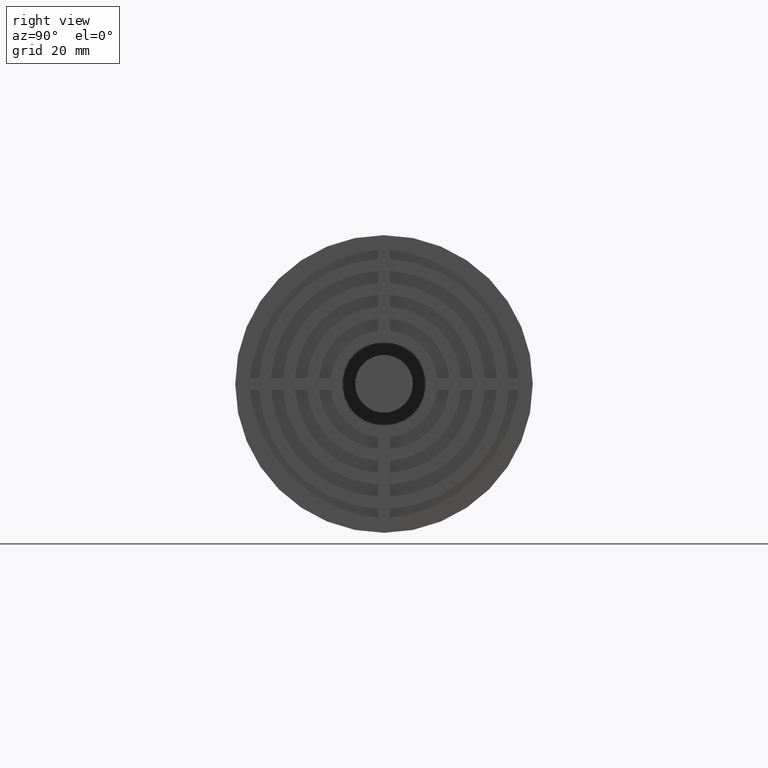
[diagram: clean part render]
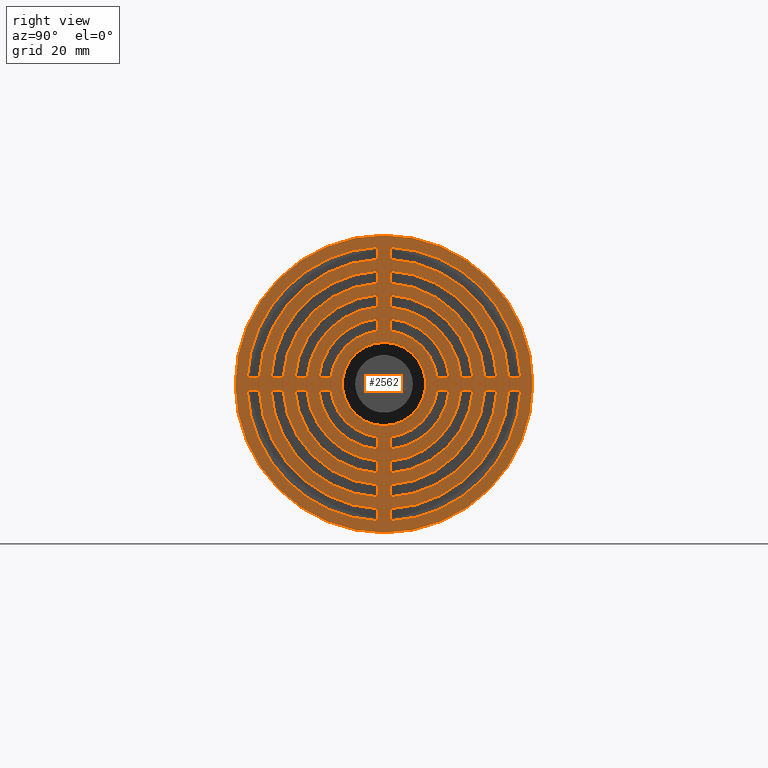
[diagram: same view with one face highlighted and labeled with its STEP entity id]
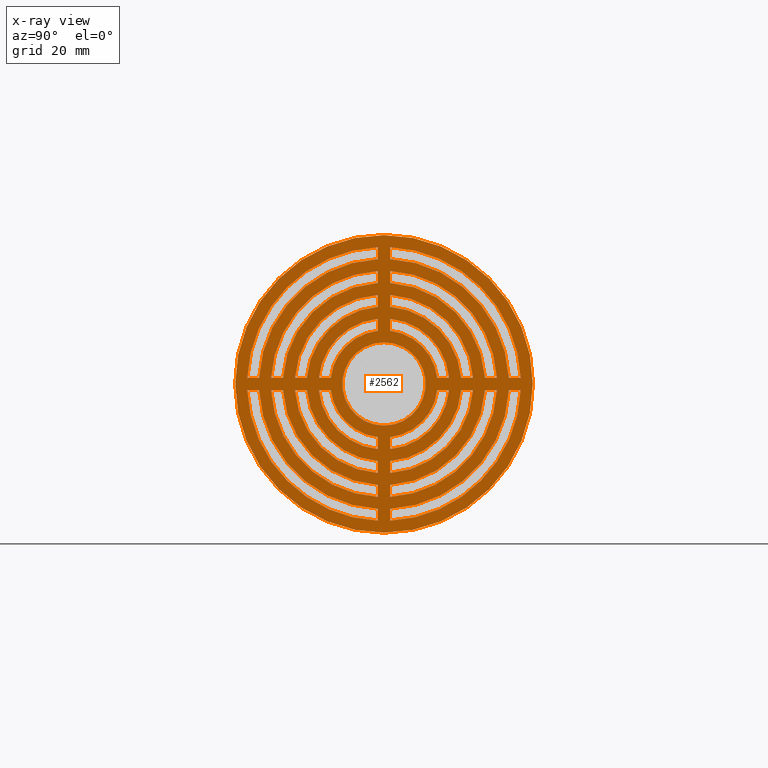
[diagram: x-ray of the same camera — body ghosted, the highlighted face saturated]
A machine part, right view. The second image highlights one B-rep face of the part: STEP entity #2562.
The next image is the same camera in x-ray: the body ghosted, the highlighted face saturated — about 0% of this face is hidden behind the body in this view.
In plain terms, the highlighted planar face has unit normal (1, 0, 0).
Its self-contained STEP definition (entity closure, byte-faithful):
#15=LINE('',#3656,#239);
#20=LINE('',#3670,#244);
#23=LINE('',#3681,#247);
#28=LINE('',#3695,#252);
#31=LINE('',#3706,#255);
#36=LINE('',#3720,#260);
#41=LINE('',#3739,#265);
#45=LINE('',#3750,#269);
#47=LINE('',#3756,#271);
#52=LINE('',#3770,#276);
#57=LINE('',#3789,#281);
#61=LINE('',#3800,#285);
#63=LINE('',#3806,#287);
#68=LINE('',#3820,#292);
#71=LINE('',#3831,#295);
#76=LINE('',#3845,#300);
#81=LINE('',#3864,#305);
#85=LINE('',#3875,#309);
#89=LINE('',#3889,#313);
#93=LINE('',#3900,#317);
#95=LINE('',#3906,#319);
#100=LINE('',#3920,#324);
#105=LINE('',#3939,#329);
#109=LINE('',#3950,#333);
#111=LINE('',#3956,#335);
#116=LINE('',#3970,#340);
#121=LINE('',#3989,#345);
#125=LINE('',#4000,#349);
#127=LINE('',#4006,#351);
#132=LINE('',#4020,#356);
#135=LINE('',#4031,#359);
#140=LINE('',#4045,#364);
#239=VECTOR('',#2877,2.00207362274909);
#244=VECTOR('',#2890,2.00207362274909);
#247=VECTOR('',#2903,2.00207362274909);
#252=VECTOR('',#2916,2.00207362274909);
#255=VECTOR('',#2929,2.00310321253313);
#260=VECTOR('',#2942,2.00310321253313);
#265=VECTOR('',#2963,2.00310321253313);
#269=VECTOR('',#2975,2.00310321253313);
#271=VECTOR('',#2981,2.00514815028005);
#276=VECTOR('',#2994,2.00514815028005);
#281=VECTOR('',#3015,2.00514815028005);
#285=VECTOR('',#3027,2.00514815028005);
#287=VECTOR('',#3033,2.01017924010416);
#292=VECTOR('',#3046,2.01017924010416);
#295=VECTOR('',#3059,2.01017924010416);
#300=VECTOR('',#3072,2.01017924010416);
#305=VECTOR('',#3093,2.01017924010416);
#309=VECTOR('',#3105,2.01017924010416);
#313=VECTOR('',#3119,2.01017924010416);
#317=VECTOR('',#3131,2.01017924010416);
#319=VECTOR('',#3137,2.00514815028005);
#324=VECTOR('',#3150,2.00514815028005);
#329=VECTOR('',#3171,2.00514815028005);
#333=VECTOR('',#3183,2.00514815028004);
#335=VECTOR('',#3189,2.00310321253313);
#340=VECTOR('',#3202,2.00310321253313);
#345=VECTOR('',#3223,2.00310321253313);
#349=VECTOR('',#3235,2.00310321253313);
#351=VECTOR('',#3241,2.00207362274909);
#356=VECTOR('',#3254,2.00207362274909);
#359=VECTOR('',#3267,2.00207362274909);
#364=VECTOR('',#3280,2.00207362274909);
#613=PLANE('',#2841);
#636=FACE_BOUND('',#979,.T.);
#637=FACE_BOUND('',#980,.T.);
#638=FACE_BOUND('',#981,.T.);
#639=FACE_BOUND('',#982,.T.);
#640=FACE_BOUND('',#983,.T.);
#641=FACE_BOUND('',#984,.T.);
#642=FACE_BOUND('',#985,.T.);
#643=FACE_BOUND('',#986,.T.);
#644=FACE_BOUND('',#987,.T.);
#645=FACE_BOUND('',#988,.T.);
#646=FACE_BOUND('',#989,.T.);
#647=FACE_BOUND('',#990,.T.);
#648=FACE_BOUND('',#991,.T.);
#649=FACE_BOUND('',#992,.T.);
#650=FACE_BOUND('',#993,.T.);
#651=FACE_BOUND('',#994,.T.);
#652=FACE_BOUND('',#995,.T.);
#804=FACE_OUTER_BOUND('',#978,.T.);
#978=EDGE_LOOP('',(#2339));
#979=EDGE_LOOP('',(#2340));
#980=EDGE_LOOP('',(#2341,#2342,#2343,#2344));
#981=EDGE_LOOP('',(#2345,#2346,#2347,#2348));
#982=EDGE_LOOP('',(#2349,#2350,#2351,#2352));
#983=EDGE_LOOP('',(#2353,#2354,#2355,#2356));
#984=EDGE_LOOP('',(#2357,#2358,#2359,#2360));
#985=EDGE_LOOP('',(#2361,#2362,#2363,#2364));
#986=EDGE_LOOP('',(#2365,#2366,#2367,#2368));
#987=EDGE_LOOP('',(#2369,#2370,#2371,#2372));
#988=EDGE_LOOP('',(#2373,#2374,#2375,#2376));
#989=EDGE_LOOP('',(#2377,#2378,#2379,#2380));
#990=EDGE_LOOP('',(#2381,#2382,#2383,#2384));
#991=EDGE_LOOP('',(#2385,#2386,#2387,#2388));
#992=EDGE_LOOP('',(#2389,#2390,#2391,#2392));
#993=EDGE_LOOP('',(#2393,#2394,#2395,#2396));
#994=EDGE_LOOP('',(#2397,#2398,#2399,#2400));
#995=EDGE_LOOP('',(#2401,#2402,#2403,#2404));
#1007=CIRCLE('',#2576,25.);
#1009=CIRCLE('',#2579,7.);
#1011=CIRCLE('',#2584,21.);
#1013=CIRCLE('',#2588,23.);
#1015=CIRCLE('',#2593,21.);
#1017=CIRCLE('',#2597,23.);
#1019=CIRCLE('',#2602,17.);
#1021=CIRCLE('',#2606,19.);
#1023=CIRCLE('',#2610,17.);
#1025=CIRCLE('',#2614,19.);
#1027=CIRCLE('',#2620,13.);
#1029=CIRCLE('',#2624,15.);
#1031=CIRCLE('',#2628,13.);
#1033=CIRCLE('',#2632,15.);
#1035=CIRCLE('',#2638,11.);
#1037=CIRCLE('',#2642,9.);
#1039=CIRCLE('',#2647,11.);
#1041=CIRCLE('',#2651,9.);
#1043=CIRCLE('',#2655,11.);
#1045=CIRCLE('',#2659,9.);
#1047=CIRCLE('',#2664,11.);
#1049=CIRCLE('',#2668,9.);
#1051=CIRCLE('',#2674,13.);
#1053=CIRCLE('',#2678,15.);
#1055=CIRCLE('',#2682,15.);
#1057=CIRCLE('',#2686,13.);
#1059=CIRCLE('',#2692,17.);
#1061=CIRCLE('',#2696,19.);
#1063=CIRCLE('',#2700,19.);
#1065=CIRCLE('',#2704,17.);
#1067=CIRCLE('',#2710,21.);
#1069=CIRCLE('',#2714,23.);
#1071=CIRCLE('',#2719,21.);
#1073=CIRCLE('',#2723,23.);
#1132=VERTEX_POINT('',#3643);
#1134=VERTEX_POINT('',#3648);
#1136=VERTEX_POINT('',#3654);
#1137=VERTEX_POINT('',#3655);
#1140=VERTEX_POINT('',#3663);
#1142=VERTEX_POINT('',#3669);
#1144=VERTEX_POINT('',#3679);
#1145=VERTEX_POINT('',#3680);
#1148=VERTEX_POINT('',#3688);
#1150=VERTEX_POINT('',#3694);
#1152=VERTEX_POINT('',#3704);
#1153=VERTEX_POINT('',#3705);
#1156=VERTEX_POINT('',#3713);
#1158=VERTEX_POINT('',#3719);
#1160=VERTEX_POINT('',#3729);
#1161=VERTEX_POINT('',#3730);
#1164=VERTEX_POINT('',#3738);
#1166=VERTEX_POINT('',#3744);
#1168=VERTEX_POINT('',#3754);
#1169=VERTEX_POINT('',#3755);
#1172=VERTEX_POINT('',#3763);
#1174=VERTEX_POINT('',#3769);
#1176=VERTEX_POINT('',#3779);
#1177=VERTEX_POINT('',#3780);
#1180=VERTEX_POINT('',#3788);
#1182=VERTEX_POINT('',#3794);
#1184=VERTEX_POINT('',#3804);
#1185=VERTEX_POINT('',#3805);
#1188=VERTEX_POINT('',#3813);
#1190=VERTEX_POINT('',#3819);
#1192=VERTEX_POINT('',#3829);
#1193=VERTEX_POINT('',#3830);
#1196=VERTEX_POINT('',#3838);
#1198=VERTEX_POINT('',#3844);
#1200=VERTEX_POINT('',#3854);
#1201=VERTEX_POINT('',#3855);
#1204=VERTEX_POINT('',#3863);
#1206=VERTEX_POINT('',#3869);
#1208=VERTEX_POINT('',#3879);
#1209=VERTEX_POINT('',#3880);
#1212=VERTEX_POINT('',#3888);
#1214=VERTEX_POINT('',#3894);
#1216=VERTEX_POINT('',#3904);
#1217=VERTEX_POINT('',#3905);
#1220=VERTEX_POINT('',#3913);
#1222=VERTEX_POINT('',#3919);
#1224=VERTEX_POINT('',#3929);
#1225=VERTEX_POINT('',#3930);
#1228=VERTEX_POINT('',#3938);
#1230=VERTEX_POINT('',#3944);
#1232=VERTEX_POINT('',#3954);
#1233=VERTEX_POINT('',#3955);
#1236=VERTEX_POINT('',#3963);
#1238=VERTEX_POINT('',#3969);
#1240=VERTEX_POINT('',#3979);
#1241=VERTEX_POINT('',#3980);
#1244=VERTEX_POINT('',#3988);
#1246=VERTEX_POINT('',#3994);
#1248=VERTEX_POINT('',#4004);
#1249=VERTEX_POINT('',#4005);
#1252=VERTEX_POINT('',#4013);
#1254=VERTEX_POINT('',#4019);
#1256=VERTEX_POINT('',#4029);
#1257=VERTEX_POINT('',#4030);
#1260=VERTEX_POINT('',#4038);
#1262=VERTEX_POINT('',#4044);
#1369=EDGE_CURVE('',#1132,#1132,#1007,.T.);
#1371=EDGE_CURVE('',#1134,#1134,#1009,.T.);
#1373=EDGE_CURVE('',#1136,#1137,#15,.T.);
#1377=EDGE_CURVE('',#1140,#1136,#1011,.T.);
#1380=EDGE_CURVE('',#1142,#1140,#20,.T.);
#1383=EDGE_CURVE('',#1137,#1142,#1013,.T.);
#1385=EDGE_CURVE('',#1144,#1145,#23,.T.);
#1389=EDGE_CURVE('',#1148,#1144,#1015,.T.);
#1392=EDGE_CURVE('',#1150,#1148,#28,.T.);
#1395=EDGE_CURVE('',#1145,#1150,#1017,.T.);
#1397=EDGE_CURVE('',#1152,#1153,#31,.T.);
#1401=EDGE_CURVE('',#1156,#1152,#1019,.T.);
#1404=EDGE_CURVE('',#1158,#1156,#36,.T.);
#1407=EDGE_CURVE('',#1153,#1158,#1021,.T.);
#1409=EDGE_CURVE('',#1160,#1161,#1023,.T.);
#1413=EDGE_CURVE('',#1164,#1160,#41,.T.);
#1416=EDGE_CURVE('',#1166,#1164,#1025,.T.);
#1419=EDGE_CURVE('',#1161,#1166,#45,.T.);
#1421=EDGE_CURVE('',#1168,#1169,#47,.T.);
#1425=EDGE_CURVE('',#1172,#1168,#1027,.T.);
#1428=EDGE_CURVE('',#1174,#1172,#52,.T.);
#1431=EDGE_CURVE('',#1169,#1174,#1029,.T.);
#1433=EDGE_CURVE('',#1176,#1177,#1031,.T.);
#1437=EDGE_CURVE('',#1180,#1176,#57,.T.);
#1440=EDGE_CURVE('',#1182,#1180,#1033,.T.);
#1443=EDGE_CURVE('',#1177,#1182,#61,.T.);
#1445=EDGE_CURVE('',#1184,#1185,#63,.T.);
#1449=EDGE_CURVE('',#1188,#1184,#1035,.T.);
#1452=EDGE_CURVE('',#1190,#1188,#68,.T.);
#1455=EDGE_CURVE('',#1185,#1190,#1037,.T.);
#1457=EDGE_CURVE('',#1192,#1193,#71,.T.);
#1461=EDGE_CURVE('',#1196,#1192,#1039,.T.);
#1464=EDGE_CURVE('',#1198,#1196,#76,.T.);
#1467=EDGE_CURVE('',#1193,#1198,#1041,.T.);
#1469=EDGE_CURVE('',#1200,#1201,#1043,.T.);
#1473=EDGE_CURVE('',#1204,#1200,#81,.T.);
#1476=EDGE_CURVE('',#1206,#1204,#1045,.T.);
#1479=EDGE_CURVE('',#1201,#1206,#85,.T.);
#1481=EDGE_CURVE('',#1208,#1209,#1047,.T.);
#1485=EDGE_CURVE('',#1212,#1208,#89,.T.);
#1488=EDGE_CURVE('',#1214,#1212,#1049,.T.);
#1491=EDGE_CURVE('',#1209,#1214,#93,.T.);
#1493=EDGE_CURVE('',#1216,#1217,#95,.T.);
#1497=EDGE_CURVE('',#1220,#1216,#1051,.T.);
#1500=EDGE_CURVE('',#1222,#1220,#100,.T.);
#1503=EDGE_CURVE('',#1217,#1222,#1053,.T.);
#1505=EDGE_CURVE('',#1224,#1225,#1055,.T.);
#1509=EDGE_CURVE('',#1228,#1224,#105,.T.);
#1512=EDGE_CURVE('',#1230,#1228,#1057,.T.);
#1515=EDGE_CURVE('',#1225,#1230,#109,.T.);
#1517=EDGE_CURVE('',#1232,#1233,#111,.T.);
#1521=EDGE_CURVE('',#1236,#1232,#1059,.T.);
#1524=EDGE_CURVE('',#1238,#1236,#116,.T.);
#1527=EDGE_CURVE('',#1233,#1238,#1061,.T.);
#1529=EDGE_CURVE('',#1240,#1241,#1063,.T.);
#1533=EDGE_CURVE('',#1244,#1240,#121,.T.);
#1536=EDGE_CURVE('',#1246,#1244,#1065,.T.);
#1539=EDGE_CURVE('',#1241,#1246,#125,.T.);
#1541=EDGE_CURVE('',#1248,#1249,#127,.T.);
#1545=EDGE_CURVE('',#1252,#1248,#1067,.T.);
#1548=EDGE_CURVE('',#1254,#1252,#132,.T.);
#1551=EDGE_CURVE('',#1249,#1254,#1069,.T.);
#1553=EDGE_CURVE('',#1256,#1257,#135,.T.);
#1557=EDGE_CURVE('',#1260,#1256,#1071,.T.);
#1560=EDGE_CURVE('',#1262,#1260,#140,.T.);
#1563=EDGE_CURVE('',#1257,#1262,#1073,.T.);
#2339=ORIENTED_EDGE('',*,*,#1369,.T.);
#2340=ORIENTED_EDGE('',*,*,#1371,.T.);
#2341=ORIENTED_EDGE('',*,*,#1373,.T.);
#2342=ORIENTED_EDGE('',*,*,#1383,.T.);
#2343=ORIENTED_EDGE('',*,*,#1380,.T.);
#2344=ORIENTED_EDGE('',*,*,#1377,.T.);
#2345=ORIENTED_EDGE('',*,*,#1385,.T.);
#2346=ORIENTED_EDGE('',*,*,#1395,.T.);
#2347=ORIENTED_EDGE('',*,*,#1392,.T.);
#2348=ORIENTED_EDGE('',*,*,#1389,.T.);
#2349=ORIENTED_EDGE('',*,*,#1397,.T.);
#2350=ORIENTED_EDGE('',*,*,#1407,.T.);
#2351=ORIENTED_EDGE('',*,*,#1404,.T.);
#2352=ORIENTED_EDGE('',*,*,#1401,.T.);
#2353=ORIENTED_EDGE('',*,*,#1409,.T.);
#2354=ORIENTED_EDGE('',*,*,#1419,.T.);
#2355=ORIENTED_EDGE('',*,*,#1416,.T.);
#2356=ORIENTED_EDGE('',*,*,#1413,.T.);
#2357=ORIENTED_EDGE('',*,*,#1421,.T.);
#2358=ORIENTED_EDGE('',*,*,#1431,.T.);
#2359=ORIENTED_EDGE('',*,*,#1428,.T.);
#2360=ORIENTED_EDGE('',*,*,#1425,.T.);
#2361=ORIENTED_EDGE('',*,*,#1433,.T.);
#2362=ORIENTED_EDGE('',*,*,#1443,.T.);
#2363=ORIENTED_EDGE('',*,*,#1440,.T.);
#2364=ORIENTED_EDGE('',*,*,#1437,.T.);
#2365=ORIENTED_EDGE('',*,*,#1445,.T.);
#2366=ORIENTED_EDGE('',*,*,#1455,.T.);
#2367=ORIENTED_EDGE('',*,*,#1452,.T.);
#2368=ORIENTED_EDGE('',*,*,#1449,.T.);
#2369=ORIENTED_EDGE('',*,*,#1457,.T.);
#2370=ORIENTED_EDGE('',*,*,#1467,.T.);
#2371=ORIENTED_EDGE('',*,*,#1464,.T.);
#2372=ORIENTED_EDGE('',*,*,#1461,.T.);
#2373=ORIENTED_EDGE('',*,*,#1469,.T.);
#2374=ORIENTED_EDGE('',*,*,#1479,.T.);
#2375=ORIENTED_EDGE('',*,*,#1476,.T.);
#2376=ORIENTED_EDGE('',*,*,#1473,.T.);
#2377=ORIENTED_EDGE('',*,*,#1481,.T.);
#2378=ORIENTED_EDGE('',*,*,#1491,.T.);
#2379=ORIENTED_EDGE('',*,*,#1488,.T.);
#2380=ORIENTED_EDGE('',*,*,#1485,.T.);
#2381=ORIENTED_EDGE('',*,*,#1493,.T.);
#2382=ORIENTED_EDGE('',*,*,#1503,.T.);
#2383=ORIENTED_EDGE('',*,*,#1500,.T.);
#2384=ORIENTED_EDGE('',*,*,#1497,.T.);
#2385=ORIENTED_EDGE('',*,*,#1505,.T.);
#2386=ORIENTED_EDGE('',*,*,#1515,.T.);
#2387=ORIENTED_EDGE('',*,*,#1512,.T.);
#2388=ORIENTED_EDGE('',*,*,#1509,.T.);
#2389=ORIENTED_EDGE('',*,*,#1517,.T.);
#2390=ORIENTED_EDGE('',*,*,#1527,.T.);
#2391=ORIENTED_EDGE('',*,*,#1524,.T.);
#2392=ORIENTED_EDGE('',*,*,#1521,.T.);
#2393=ORIENTED_EDGE('',*,*,#1529,.T.);
#2394=ORIENTED_EDGE('',*,*,#1539,.T.);
#2395=ORIENTED_EDGE('',*,*,#1536,.T.);
#2396=ORIENTED_EDGE('',*,*,#1533,.T.);
#2397=ORIENTED_EDGE('',*,*,#1541,.T.);
#2398=ORIENTED_EDGE('',*,*,#1551,.T.);
#2399=ORIENTED_EDGE('',*,*,#1548,.T.);
#2400=ORIENTED_EDGE('',*,*,#1545,.T.);
#2401=ORIENTED_EDGE('',*,*,#1553,.T.);
#2402=ORIENTED_EDGE('',*,*,#1563,.T.);
#2403=ORIENTED_EDGE('',*,*,#1560,.T.);
#2404=ORIENTED_EDGE('',*,*,#1557,.T.);
#2562=ADVANCED_FACE('',(#804,#636,#637,#638,#639,#640,#641,#642,#643,#644,
#645,#646,#647,#648,#649,#650,#651,#652),#613,.T.);
#2576=AXIS2_PLACEMENT_3D('',#3644,#2863,#2864);
#2579=AXIS2_PLACEMENT_3D('',#3649,#2869,#2870);
#2584=AXIS2_PLACEMENT_3D('',#3664,#2883,#2884);
#2588=AXIS2_PLACEMENT_3D('',#3675,#2895,#2896);
#2593=AXIS2_PLACEMENT_3D('',#3689,#2909,#2910);
#2597=AXIS2_PLACEMENT_3D('',#3700,#2921,#2922);
#2602=AXIS2_PLACEMENT_3D('',#3714,#2935,#2936);
#2606=AXIS2_PLACEMENT_3D('',#3725,#2947,#2948);
#2610=AXIS2_PLACEMENT_3D('',#3731,#2955,#2956);
#2614=AXIS2_PLACEMENT_3D('',#3745,#2968,#2969);
#2620=AXIS2_PLACEMENT_3D('',#3764,#2987,#2988);
#2624=AXIS2_PLACEMENT_3D('',#3775,#2999,#3000);
#2628=AXIS2_PLACEMENT_3D('',#3781,#3007,#3008);
#2632=AXIS2_PLACEMENT_3D('',#3795,#3020,#3021);
#2638=AXIS2_PLACEMENT_3D('',#3814,#3039,#3040);
#2642=AXIS2_PLACEMENT_3D('',#3825,#3051,#3052);
#2647=AXIS2_PLACEMENT_3D('',#3839,#3065,#3066);
#2651=AXIS2_PLACEMENT_3D('',#3850,#3077,#3078);
#2655=AXIS2_PLACEMENT_3D('',#3856,#3085,#3086);
#2659=AXIS2_PLACEMENT_3D('',#3870,#3098,#3099);
#2664=AXIS2_PLACEMENT_3D('',#3881,#3111,#3112);
#2668=AXIS2_PLACEMENT_3D('',#3895,#3124,#3125);
#2674=AXIS2_PLACEMENT_3D('',#3914,#3143,#3144);
#2678=AXIS2_PLACEMENT_3D('',#3925,#3155,#3156);
#2682=AXIS2_PLACEMENT_3D('',#3931,#3163,#3164);
#2686=AXIS2_PLACEMENT_3D('',#3945,#3176,#3177);
#2692=AXIS2_PLACEMENT_3D('',#3964,#3195,#3196);
#2696=AXIS2_PLACEMENT_3D('',#3975,#3207,#3208);
#2700=AXIS2_PLACEMENT_3D('',#3981,#3215,#3216);
#2704=AXIS2_PLACEMENT_3D('',#3995,#3228,#3229);
#2710=AXIS2_PLACEMENT_3D('',#4014,#3247,#3248);
#2714=AXIS2_PLACEMENT_3D('',#4025,#3259,#3260);
#2719=AXIS2_PLACEMENT_3D('',#4039,#3273,#3274);
#2723=AXIS2_PLACEMENT_3D('',#4050,#3285,#3286);
#2841=AXIS2_PLACEMENT_3D('',#4364,#3617,#3618);
#2863=DIRECTION('center_axis',(1.,1.83697019872103E-16,0.));
#2864=DIRECTION('ref_axis',(0.,0.,-1.));
#2869=DIRECTION('center_axis',(-1.,-1.83697019872103E-16,0.));
#2870=DIRECTION('ref_axis',(0.,0.,1.));
#2877=DIRECTION('',(3.26974622006562E-32,-1.77996693813658E-16,-1.));
#2883=DIRECTION('center_axis',(1.,1.83697019872103E-16,0.));
#2884=DIRECTION('ref_axis',(0.,0.998865569685859,0.0476190476190477));
#2890=DIRECTION('',(-1.83697019872103E-16,1.,-1.18664462542439E-16));
#2895=DIRECTION('center_axis',(-1.,-1.83697019872103E-16,0.));
#2896=DIRECTION('ref_axis',(0.,-0.999054373310961,-0.0434782608695651));
#2903=DIRECTION('',(-1.08991540668854E-32,5.93322312712193E-17,1.));
#2909=DIRECTION('center_axis',(1.,1.83697019872103E-16,0.));
#2910=DIRECTION('ref_axis',(0.,-0.998865569685859,-0.0476190476190474));
#2916=DIRECTION('',(1.83697019872103E-16,-1.,-5.93322312712193E-17));
#2921=DIRECTION('center_axis',(-1.,-1.83697019872103E-16,0.));
#2922=DIRECTION('ref_axis',(0.,0.999054373310961,0.0434782608695652));
#2929=DIRECTION('',(1.83697019872103E-16,-1.,1.18664462542439E-16));
#2935=DIRECTION('center_axis',(1.,1.83697019872103E-16,0.));
#2936=DIRECTION('ref_axis',(-8.16340459283202E-18,0.0588235294117646,-0.998268396969244));
#2942=DIRECTION('',(1.08991540668854E-32,-5.93322312712193E-17,-1.));
#2947=DIRECTION('center_axis',(-1.,-1.83697019872103E-16,0.));
#2948=DIRECTION('ref_axis',(7.30409884621809E-18,-0.0526315789473681,0.998613997947909));
#2955=DIRECTION('center_axis',(1.,1.83697019872103E-16,0.));
#2956=DIRECTION('ref_axis',(0.,-0.0588235294117647,0.998268396969244));
#2963=DIRECTION('',(-3.26974622006562E-32,1.77996693813658E-16,1.));
#2968=DIRECTION('center_axis',(-1.,-1.83697019872103E-16,0.));
#2969=DIRECTION('ref_axis',(0.,0.0526315789473683,-0.998613997947909));
#2975=DIRECTION('',(-1.83697019872103E-16,1.,-5.93322312712193E-17));
#2981=DIRECTION('',(1.83697019872103E-16,-1.,1.18664462542439E-16));
#2987=DIRECTION('center_axis',(1.,1.83697019872103E-16,0.));
#2988=DIRECTION('ref_axis',(-1.06752213906264E-17,0.0769230769230766,-0.997037030524286));
#2994=DIRECTION('',(1.08991540668854E-32,-5.93322312712193E-17,-1.));
#2999=DIRECTION('center_axis',(-1.,-1.83697019872103E-16,0.));
#3000=DIRECTION('ref_axis',(9.25185853854291E-18,-0.0666666666666663,0.997775303139718));
#3007=DIRECTION('center_axis',(1.,1.83697019872103E-16,0.));
#3008=DIRECTION('ref_axis',(0.,-0.0769230769230771,0.997037030524286));
#3015=DIRECTION('',(-3.26974622006562E-32,1.77996693813658E-16,1.));
#3020=DIRECTION('center_axis',(-1.,-1.83697019872103E-16,0.));
#3021=DIRECTION('ref_axis',(0.,0.0666666666666664,-0.997775303139718));
#3027=DIRECTION('',(-1.83697019872103E-16,1.,-5.93322312712193E-17));
#3033=DIRECTION('',(1.83697019872103E-16,-1.,-5.93322312712193E-17));
#3039=DIRECTION('center_axis',(-1.,-1.83697019872103E-16,0.));
#3040=DIRECTION('ref_axis',(-1.38203226011093E-16,0.995859195463938,0.0909090909090908));
#3046=DIRECTION('',(-1.08991540668854E-32,5.93322312712193E-17,1.));
#3051=DIRECTION('center_axis',(1.,1.83697019872103E-16,0.));
#3052=DIRECTION('ref_axis',(1.37918564069293E-16,-0.993807989999907,-0.111111111111111));
#3059=DIRECTION('',(-3.26974622006562E-32,1.77996693813658E-16,1.));
#3065=DIRECTION('center_axis',(-1.,-1.83697019872103E-16,0.));
#3066=DIRECTION('ref_axis',(0.,0.0909090909090913,-0.995859195463938));
#3072=DIRECTION('',(-1.83697019872103E-16,1.,-5.93322312712193E-17));
#3077=DIRECTION('center_axis',(1.,1.83697019872103E-16,0.));
#3078=DIRECTION('ref_axis',(0.,-0.111111111111111,0.993807989999907));
#3085=DIRECTION('center_axis',(-1.,-1.83697019872103E-16,0.));
#3086=DIRECTION('ref_axis',(1.26161707343767E-17,-0.0909090909090903,0.995859195463938));
#3093=DIRECTION('',(1.83697019872103E-16,-1.,1.18664462542439E-16));
#3098=DIRECTION('center_axis',(1.,1.83697019872103E-16,0.));
#3099=DIRECTION('ref_axis',(-1.54197642309049E-17,0.111111111111111,-0.993807989999907));
#3105=DIRECTION('',(1.08991540668854E-32,-5.93322312712193E-17,-1.));
#3111=DIRECTION('center_axis',(-1.,-1.83697019872103E-16,0.));
#3112=DIRECTION('ref_axis',(0.,-0.995859195463938,-0.0909090909090911));
#3119=DIRECTION('',(3.26974622006562E-32,-1.77996693813658E-16,-1.));
#3124=DIRECTION('center_axis',(1.,1.83697019872103E-16,0.));
#3125=DIRECTION('ref_axis',(0.,0.993807989999907,0.111111111111111));
#3131=DIRECTION('',(-1.83697019872103E-16,1.,-1.18664462542439E-16));
#3137=DIRECTION('',(-1.08991540668854E-32,5.93322312712193E-17,1.));
#3143=DIRECTION('center_axis',(1.,1.83697019872103E-16,0.));
#3144=DIRECTION('ref_axis',(0.,-0.997037030524286,-0.0769230769230771));
#3150=DIRECTION('',(1.83697019872103E-16,-1.,-5.93322312712193E-17));
#3155=DIRECTION('center_axis',(-1.,-1.83697019872103E-16,0.));
#3156=DIRECTION('ref_axis',(0.,0.997775303139718,0.0666666666666668));
#3163=DIRECTION('center_axis',(-1.,-1.83697019872103E-16,0.));
#3164=DIRECTION('ref_axis',(0.,-0.997775303139718,-0.0666666666666671));
#3171=DIRECTION('',(3.26974622006562E-32,-1.77996693813658E-16,-1.));
#3176=DIRECTION('center_axis',(1.,1.83697019872103E-16,0.));
#3177=DIRECTION('ref_axis',(0.,0.997037030524286,0.0769230769230769));
#3183=DIRECTION('',(-1.83697019872103E-16,1.,-1.18664462542439E-16));
#3189=DIRECTION('',(-1.08991540668854E-32,5.93322312712193E-17,1.));
#3195=DIRECTION('center_axis',(1.,1.83697019872103E-16,0.));
#3196=DIRECTION('ref_axis',(0.,-0.998268396969244,-0.0588235294117647));
#3202=DIRECTION('',(1.83697019872103E-16,-1.,-5.93322312712193E-17));
#3207=DIRECTION('center_axis',(-1.,-1.83697019872103E-16,0.));
#3208=DIRECTION('ref_axis',(0.,0.998613997947909,0.0526315789473686));
#3215=DIRECTION('center_axis',(-1.,-1.83697019872103E-16,0.));
#3216=DIRECTION('ref_axis',(0.,-0.998613997947909,-0.0526315789473681));
#3223=DIRECTION('',(3.26974622006562E-32,-1.77996693813658E-16,-1.));
#3228=DIRECTION('center_axis',(1.,1.83697019872103E-16,0.));
#3229=DIRECTION('ref_axis',(0.,0.998268396969244,0.0588235294117646));
#3235=DIRECTION('',(-1.83697019872103E-16,1.,-1.18664462542439E-16));
#3241=DIRECTION('',(1.83697019872103E-16,-1.,1.18664462542439E-16));
#3247=DIRECTION('center_axis',(1.,1.83697019872103E-16,0.));
#3248=DIRECTION('ref_axis',(-6.60847038467344E-18,0.0476190476190469,-0.998865569685859));
#3254=DIRECTION('',(1.08991540668854E-32,-5.93322312712193E-17,-1.));
#3259=DIRECTION('center_axis',(-1.,-1.83697019872103E-16,0.));
#3260=DIRECTION('ref_axis',(6.03382078600627E-18,-0.0434782608695652,0.999054373310961));
#3267=DIRECTION('',(-1.83697019872103E-16,1.,-5.93322312712193E-17));
#3273=DIRECTION('center_axis',(1.,1.83697019872103E-16,0.));
#3274=DIRECTION('ref_axis',(6.60847038467358E-18,-0.0476190476190479,0.998865569685859));
#3280=DIRECTION('',(-3.26974622006562E-32,1.77996693813658E-16,1.));
#3285=DIRECTION('center_axis',(-1.,-1.83697019872103E-16,0.));
#3286=DIRECTION('ref_axis',(-6.03382078600626E-18,0.043478260869565,-0.999054373310961));
#3617=DIRECTION('center_axis',(1.,1.83697019872103E-16,0.));
#3618=DIRECTION('ref_axis',(0.,0.,-1.));
#3643=CARTESIAN_POINT('',(-30.,25.,0.));
#3644=CARTESIAN_POINT('Origin',(-30.,-5.51091059616309E-15,0.));
#3648=CARTESIAN_POINT('',(-30.,-4.65365783675994E-15,-7.));
#3649=CARTESIAN_POINT('Origin',(-30.,-5.51091059616309E-15,0.));
#3654=CARTESIAN_POINT('',(-30.,-1.00000000000001,-20.976176963403));
#3655=CARTESIAN_POINT('',(-30.,-1.00000000000001,-22.9782505861521));
#3656=CARTESIAN_POINT('',(-30.,-1.00000000000001,-10.4880884817015));
#3663=CARTESIAN_POINT('',(-30.,-20.976176963403,-1.));
#3664=CARTESIAN_POINT('Origin',(-30.,-5.51091059616309E-15,0.));
#3669=CARTESIAN_POINT('',(-30.,-22.9782505861521,-0.999999999999997));
#3670=CARTESIAN_POINT('',(-30.,-11.4891252930761,-0.999999999999999));
#3675=CARTESIAN_POINT('Origin',(-30.,-5.51091059616309E-15,0.));
#3679=CARTESIAN_POINT('',(-30.,0.999999999999993,20.976176963403));
#3680=CARTESIAN_POINT('',(-30.,0.999999999999996,22.9782505861521));
#3681=CARTESIAN_POINT('',(-30.,0.999999999999995,10.4880884817015));
#3688=CARTESIAN_POINT('',(-30.,20.976176963403,0.999999999999994));
#3689=CARTESIAN_POINT('Origin',(-30.,-5.51091059616309E-15,0.));
#3694=CARTESIAN_POINT('',(-30.,22.9782505861521,1.));
#3695=CARTESIAN_POINT('',(-30.,11.4891252930761,0.999999999999999));
#3700=CARTESIAN_POINT('Origin',(-30.,-5.51091059616309E-15,0.));
#3704=CARTESIAN_POINT('',(-30.,-16.9705627484771,1.));
#3705=CARTESIAN_POINT('',(-30.,-18.9736659610103,1.));
#3706=CARTESIAN_POINT('',(-30.,-8.48528137423857,1.));
#3713=CARTESIAN_POINT('',(-30.,-1.,16.9705627484771));
#3714=CARTESIAN_POINT('Origin',(-30.,-5.51091059616309E-15,0.));
#3719=CARTESIAN_POINT('',(-30.,-1.,18.9736659610103));
#3720=CARTESIAN_POINT('',(-30.,-1.00000000000001,9.48683298050514));
#3725=CARTESIAN_POINT('Origin',(-30.,-5.51091059616309E-15,0.));
#3729=CARTESIAN_POINT('',(-30.,0.999999999999995,-16.9705627484771));
#3730=CARTESIAN_POINT('',(-30.,16.9705627484771,-1.));
#3731=CARTESIAN_POINT('Origin',(-30.,-5.51091059616309E-15,0.));
#3738=CARTESIAN_POINT('',(-30.,0.999999999999991,-18.9736659610103));
#3739=CARTESIAN_POINT('',(-30.,0.999999999999993,-9.48683298050514));
#3744=CARTESIAN_POINT('',(-30.,18.9736659610103,-0.999999999999998));
#3745=CARTESIAN_POINT('Origin',(-30.,-5.51091059616309E-15,0.));
#3750=CARTESIAN_POINT('',(-30.,8.48528137423856,-1.));
#3754=CARTESIAN_POINT('',(-30.,-12.9614813968157,1.));
#3755=CARTESIAN_POINT('',(-30.,-14.9666295470958,0.999999999999999));
#3756=CARTESIAN_POINT('',(-30.,-6.48074069840786,1.));
#3763=CARTESIAN_POINT('',(-30.,-1.,12.9614813968157));
#3764=CARTESIAN_POINT('Origin',(-30.,-5.51091059616309E-15,0.));
#3769=CARTESIAN_POINT('',(-30.,-1.,14.9666295470958));
#3770=CARTESIAN_POINT('',(-30.,-1.00000000000001,7.48331477354788));
#3775=CARTESIAN_POINT('Origin',(-30.,-5.51091059616309E-15,0.));
#3779=CARTESIAN_POINT('',(-30.,0.999999999999997,-12.9614813968157));
#3780=CARTESIAN_POINT('',(-30.,12.9614813968157,-1.));
#3781=CARTESIAN_POINT('Origin',(-30.,-5.51091059616309E-15,0.));
#3788=CARTESIAN_POINT('',(-30.,0.99999999999999,-14.9666295470958));
#3789=CARTESIAN_POINT('',(-30.,0.999999999999993,-7.48331477354788));
#3794=CARTESIAN_POINT('',(-30.,14.9666295470958,-0.999999999999997));
#3795=CARTESIAN_POINT('Origin',(-30.,-5.51091059616309E-15,0.));
#3800=CARTESIAN_POINT('',(-30.,6.48074069840786,-1.));
#3804=CARTESIAN_POINT('',(-30.,10.9544511501033,0.999999999999998));
#3805=CARTESIAN_POINT('',(-30.,8.94427190999915,0.999999999999999));
#3806=CARTESIAN_POINT('',(-30.,5.47722557505166,0.999999999999999));
#3813=CARTESIAN_POINT('',(-30.,0.999999999999995,10.9544511501033));
#3814=CARTESIAN_POINT('Origin',(-30.,-5.51091059616309E-15,0.));
#3819=CARTESIAN_POINT('',(-30.,0.999999999999995,8.94427190999916));
#3820=CARTESIAN_POINT('',(-30.,0.999999999999995,4.47213595499958));
#3825=CARTESIAN_POINT('Origin',(-30.,-5.51091059616309E-15,0.));
#3829=CARTESIAN_POINT('',(-30.,0.999999999999998,-10.9544511501033));
#3830=CARTESIAN_POINT('',(-30.,0.999999999999993,-8.94427190999916));
#3831=CARTESIAN_POINT('',(-30.,0.999999999999993,-5.47722557505166));
#3838=CARTESIAN_POINT('',(-30.,10.9544511501033,-0.999999999999995));
#3839=CARTESIAN_POINT('Origin',(-30.,-5.51091059616309E-15,0.));
#3844=CARTESIAN_POINT('',(-30.,8.94427190999915,-1.));
#3845=CARTESIAN_POINT('',(-30.,4.47213595499957,-1.));
#3850=CARTESIAN_POINT('Origin',(-30.,-5.51091059616309E-15,0.));
#3854=CARTESIAN_POINT('',(-30.,-10.9544511501033,0.999999999999996));
#3855=CARTESIAN_POINT('',(-30.,-0.999999999999998,10.9544511501033));
#3856=CARTESIAN_POINT('Origin',(-30.,-5.51091059616309E-15,0.));
#3863=CARTESIAN_POINT('',(-30.,-8.94427190999916,1.));
#3864=CARTESIAN_POINT('',(-30.,-4.47213595499958,1.));
#3869=CARTESIAN_POINT('',(-30.,-1.00000000000001,8.94427190999916));
#3870=CARTESIAN_POINT('Origin',(-30.,-5.51091059616309E-15,0.));
#3875=CARTESIAN_POINT('',(-30.,-1.00000000000001,5.47722557505166));
#3879=CARTESIAN_POINT('',(-30.,-1.,-10.9544511501033));
#3880=CARTESIAN_POINT('',(-30.,-10.9544511501033,-1.));
#3881=CARTESIAN_POINT('Origin',(-30.,-5.51091059616309E-15,0.));
#3888=CARTESIAN_POINT('',(-30.,-1.00000000000001,-8.94427190999916));
#3889=CARTESIAN_POINT('',(-30.,-1.00000000000001,-4.47213595499958));
#3894=CARTESIAN_POINT('',(-30.,-8.94427190999916,-0.999999999999999));
#3895=CARTESIAN_POINT('Origin',(-30.,-5.51091059616309E-15,0.));
#3900=CARTESIAN_POINT('',(-30.,-5.47722557505167,-0.999999999999999));
#3904=CARTESIAN_POINT('',(-30.,0.999999999999993,12.9614813968157));
#3905=CARTESIAN_POINT('',(-30.,0.999999999999992,14.9666295470958));
#3906=CARTESIAN_POINT('',(-30.,0.999999999999995,6.48074069840786));
#3913=CARTESIAN_POINT('',(-30.,12.9614813968157,1.));
#3914=CARTESIAN_POINT('Origin',(-30.,-5.51091059616309E-15,0.));
#3919=CARTESIAN_POINT('',(-30.,14.9666295470958,1.));
#3920=CARTESIAN_POINT('',(-30.,7.48331477354788,0.999999999999999));
#3925=CARTESIAN_POINT('Origin',(-30.,-5.51091059616309E-15,0.));
#3929=CARTESIAN_POINT('',(-30.,-1.,-14.9666295470958));
#3930=CARTESIAN_POINT('',(-30.,-14.9666295470958,-1.00000000000001));
#3931=CARTESIAN_POINT('Origin',(-30.,-5.51091059616309E-15,0.));
#3938=CARTESIAN_POINT('',(-30.,-1.00000000000001,-12.9614813968157));
#3939=CARTESIAN_POINT('',(-30.,-1.00000000000001,-6.48074069840786));
#3944=CARTESIAN_POINT('',(-30.,-12.9614813968157,-1.));
#3945=CARTESIAN_POINT('Origin',(-30.,-5.51091059616309E-15,0.));
#3950=CARTESIAN_POINT('',(-30.,-7.48331477354789,-0.999999999999999));
#3954=CARTESIAN_POINT('',(-30.,0.999999999999997,16.9705627484771));
#3955=CARTESIAN_POINT('',(-30.,0.999999999999994,18.9736659610103));
#3956=CARTESIAN_POINT('',(-30.,0.999999999999995,8.48528137423857));
#3963=CARTESIAN_POINT('',(-30.,16.9705627484771,1.));
#3964=CARTESIAN_POINT('Origin',(-30.,-5.51091059616309E-15,0.));
#3969=CARTESIAN_POINT('',(-30.,18.9736659610103,1.));
#3970=CARTESIAN_POINT('',(-30.,9.48683298050513,0.999999999999999));
#3975=CARTESIAN_POINT('Origin',(-30.,-5.51091059616309E-15,0.));
#3979=CARTESIAN_POINT('',(-30.,-1.,-18.9736659610103));
#3980=CARTESIAN_POINT('',(-30.,-18.9736659610103,-0.999999999999993));
#3981=CARTESIAN_POINT('Origin',(-30.,-5.51091059616309E-15,0.));
#3988=CARTESIAN_POINT('',(-30.,-1.00000000000001,-16.9705627484771));
#3989=CARTESIAN_POINT('',(-30.,-1.00000000000001,-8.48528137423857));
#3994=CARTESIAN_POINT('',(-30.,-16.9705627484771,-0.999999999999998));
#3995=CARTESIAN_POINT('Origin',(-30.,-5.51091059616309E-15,0.));
#4000=CARTESIAN_POINT('',(-30.,-9.48683298050514,-0.999999999999999));
#4004=CARTESIAN_POINT('',(-30.,-20.976176963403,1.00000000000001));
#4005=CARTESIAN_POINT('',(-30.,-22.9782505861521,1.));
#4006=CARTESIAN_POINT('',(-30.,-10.4880884817015,1.));
#4013=CARTESIAN_POINT('',(-30.,-0.999999999999989,20.976176963403));
#4014=CARTESIAN_POINT('Origin',(-30.,-5.51091059616309E-15,0.));
#4019=CARTESIAN_POINT('',(-30.,-1.,22.9782505861521));
#4020=CARTESIAN_POINT('',(-30.,-1.,11.4891252930761));
#4025=CARTESIAN_POINT('Origin',(-30.,-5.51091059616309E-15,0.));
#4029=CARTESIAN_POINT('',(-30.,20.976176963403,-1.00000000000001));
#4030=CARTESIAN_POINT('',(-30.,22.9782505861521,-1.));
#4031=CARTESIAN_POINT('',(-30.,10.4880884817015,-1.));
#4038=CARTESIAN_POINT('',(-30.,0.999999999999999,-20.976176963403));
#4039=CARTESIAN_POINT('Origin',(-30.,-5.51091059616309E-15,0.));
#4044=CARTESIAN_POINT('',(-30.,0.99999999999999,-22.9782505861521));
#4045=CARTESIAN_POINT('',(-30.,0.999999999999992,-11.4891252930761));
#4050=CARTESIAN_POINT('Origin',(-30.,-5.51091059616309E-15,0.));
#4364=CARTESIAN_POINT('Origin',(-30.,-4.44089209850063E-15,0.));